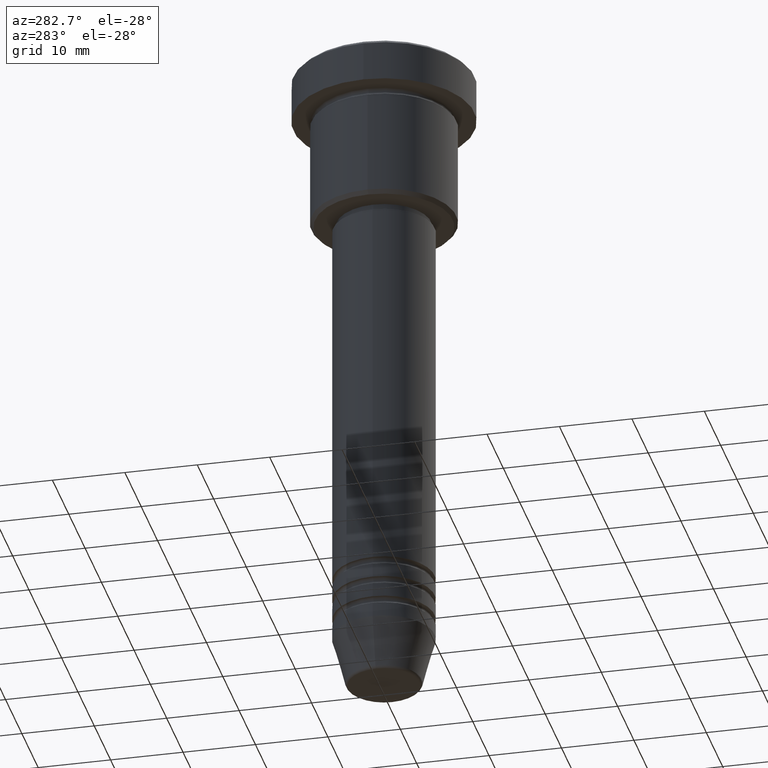
[diagram: clean part render]
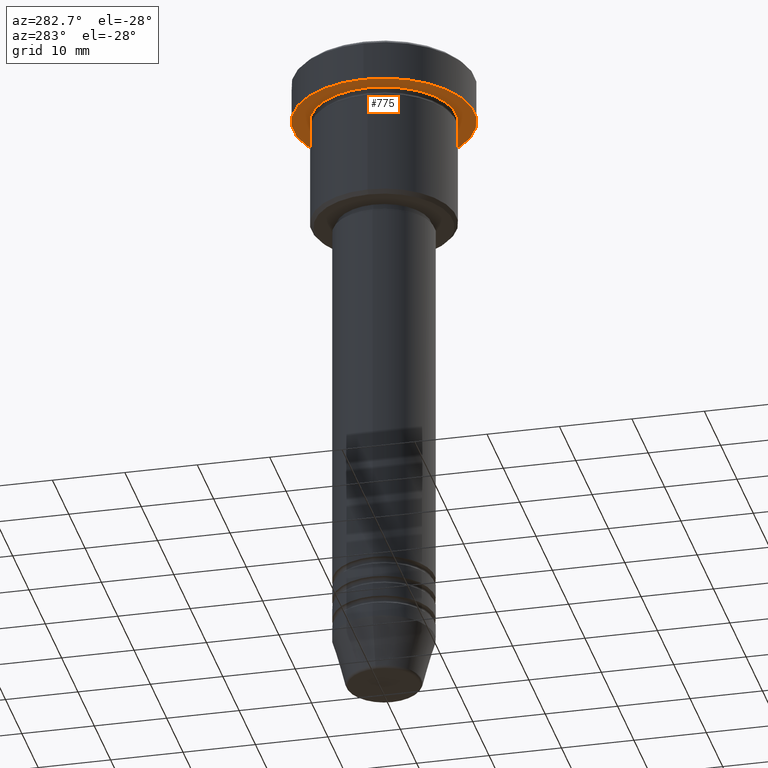
[diagram: same view with one face highlighted and labeled with its STEP entity id]
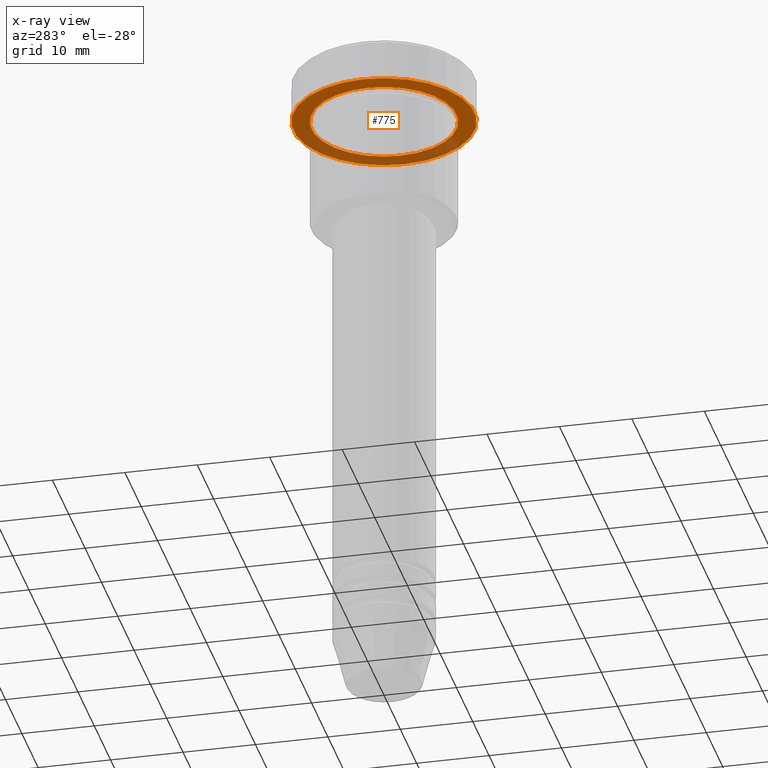
[diagram: x-ray of the same camera — body ghosted, the highlighted face saturated]
A machine part, auxiliary view. The second image highlights one B-rep face of the part: STEP entity #775.
The next image is the same camera in x-ray: the body ghosted, the highlighted face saturated — about 33% of this face is hidden behind the body in this view.
In plain terms, the highlighted planar face has unit normal (0, 0, -1).
Its self-contained STEP definition (entity closure, byte-faithful):
#15 = CIRCLE ( 'NONE', #682, 12.50000000000000000 ) ;
#106 = DIRECTION ( 'NONE',  ( 1.000000000000000000, 0.000000000000000000, 0.000000000000000000 ) ) ;
#109 = VERTEX_POINT ( 'NONE', #1128 ) ;
#126 = VERTEX_POINT ( 'NONE', #865 ) ;
#139 = FACE_OUTER_BOUND ( 'NONE', #980, .T. ) ;
#169 = CARTESIAN_POINT ( 'NONE',  ( -12.50000000000000000, 1.530808498934191521E-15, -5.999999999999996447 ) ) ;
#202 = DIRECTION ( 'NONE',  ( -1.000000000000000000, 0.000000000000000000, 0.000000000000000000 ) ) ;
#263 = EDGE_CURVE ( 'NONE', #779, #109, #468, .T. ) ;
#296 = EDGE_CURVE ( 'NONE', #1097, #126, #633, .T. ) ;
#357 = CARTESIAN_POINT ( 'NONE',  ( 0.000000000000000000, 0.000000000000000000, -5.999999999999996447 ) ) ;
#370 = EDGE_CURVE ( 'NONE', #126, #1097, #814, .T. ) ;
#386 = DIRECTION ( 'NONE',  ( 1.000000000000000000, 0.000000000000000000, 0.000000000000000000 ) ) ;
#410 = CARTESIAN_POINT ( 'NONE',  ( -10.00000000000000000, 0.000000000000000000, -5.999999999999996447 ) ) ;
#411 = ORIENTED_EDGE ( 'NONE', *, *, #597, .F. ) ;
#419 = ORIENTED_EDGE ( 'NONE', *, *, #370, .T. ) ;
#441 = AXIS2_PLACEMENT_3D ( 'NONE', #502, #889, #712 ) ;
#468 = CIRCLE ( 'NONE', #1138, 12.50000000000000000 ) ;
#502 = CARTESIAN_POINT ( 'NONE',  ( 0.000000000000000000, 12.50000000000000000, -5.999999999999996447 ) ) ;
#592 = PLANE ( 'NONE',  #441 ) ;
#597 = EDGE_CURVE ( 'NONE', #109, #779, #15, .T. ) ;
#633 = CIRCLE ( 'NONE', #1042, 10.00000000000000000 ) ;
#645 = CARTESIAN_POINT ( 'NONE',  ( 0.000000000000000000, 0.000000000000000000, -5.999999999999996447 ) ) ;
#661 = DIRECTION ( 'NONE',  ( -0.000000000000000000, -0.000000000000000000, 1.000000000000000000 ) ) ;
#668 = CARTESIAN_POINT ( 'NONE',  ( 0.000000000000000000, 0.000000000000000000, -5.999999999999996447 ) ) ;
#682 = AXIS2_PLACEMENT_3D ( 'NONE', #645, #1016, #106 ) ;
#712 = DIRECTION ( 'NONE',  ( -1.000000000000000000, 0.000000000000000000, -0.000000000000000000 ) ) ;
#719 = DIRECTION ( 'NONE',  ( -0.000000000000000000, -0.000000000000000000, 1.000000000000000000 ) ) ;
#737 = ORIENTED_EDGE ( 'NONE', *, *, #296, .T. ) ;
#775 = ADVANCED_FACE ( 'NONE', ( #1047, #139 ), #592, .T. ) ;
#779 = VERTEX_POINT ( 'NONE', #169 ) ;
#814 = CIRCLE ( 'NONE', #1117, 10.00000000000000000 ) ;
#865 = CARTESIAN_POINT ( 'NONE',  ( 10.00000000000000000, 1.224646799147353256E-15, -5.999999999999996447 ) ) ;
#889 = DIRECTION ( 'NONE',  ( 0.000000000000000000, 0.000000000000000000, -1.000000000000000000 ) ) ;
#978 = ORIENTED_EDGE ( 'NONE', *, *, #263, .F. ) ;
#980 = EDGE_LOOP ( 'NONE', ( #411, #978 ) ) ;
#1016 = DIRECTION ( 'NONE',  ( -0.000000000000000000, -0.000000000000000000, 1.000000000000000000 ) ) ;
#1027 = DIRECTION ( 'NONE',  ( -0.000000000000000000, -0.000000000000000000, 1.000000000000000000 ) ) ;
#1042 = AXIS2_PLACEMENT_3D ( 'NONE', #1116, #1027, #202 ) ;
#1047 = FACE_BOUND ( 'NONE', #1180, .T. ) ;
#1083 = DIRECTION ( 'NONE',  ( -1.000000000000000000, 0.000000000000000000, 0.000000000000000000 ) ) ;
#1097 = VERTEX_POINT ( 'NONE', #410 ) ;
#1116 = CARTESIAN_POINT ( 'NONE',  ( 0.000000000000000000, 0.000000000000000000, -5.999999999999996447 ) ) ;
#1117 = AXIS2_PLACEMENT_3D ( 'NONE', #357, #719, #1083 ) ;
#1128 = CARTESIAN_POINT ( 'NONE',  ( 12.50000000000000000, 0.000000000000000000, -5.999999999999996447 ) ) ;
#1138 = AXIS2_PLACEMENT_3D ( 'NONE', #668, #661, #386 ) ;
#1180 = EDGE_LOOP ( 'NONE', ( #737, #419 ) ) ;